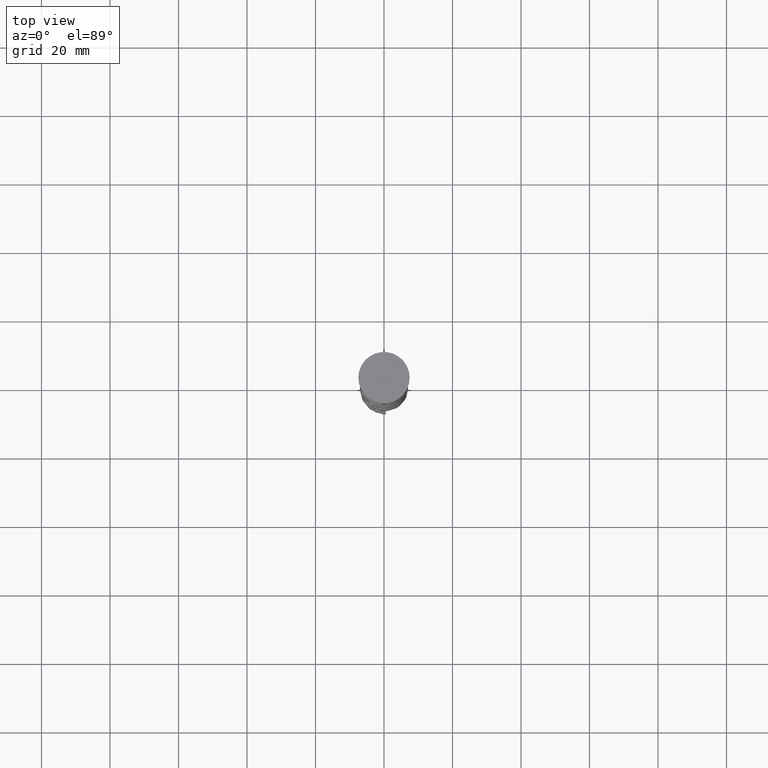
[diagram: clean part render]
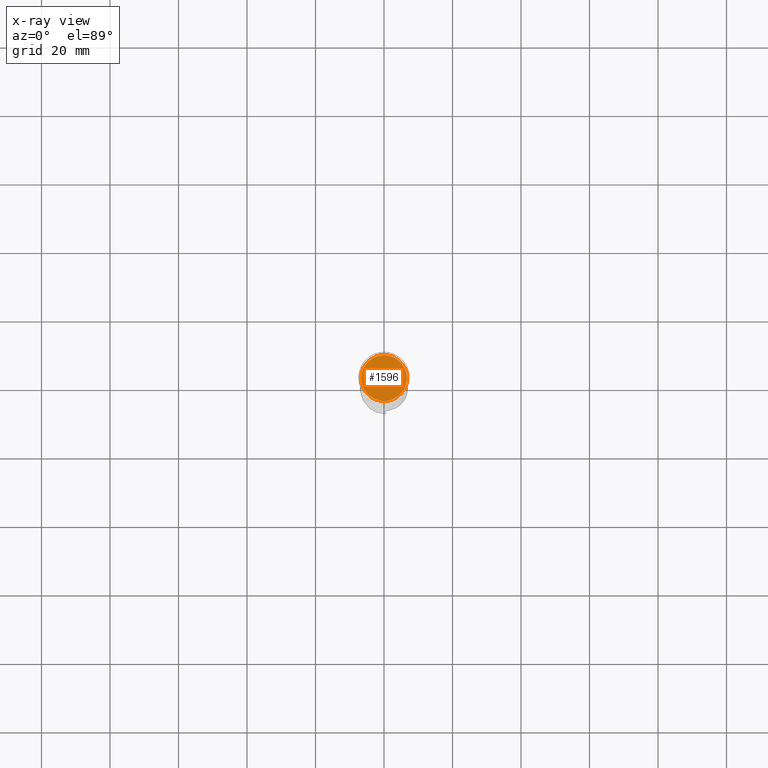
[diagram: x-ray — body ghosted, one internal face saturated and labeled with its STEP entity id]
A machine part, top view, then the same camera in x-ray: the body is ghosted and one INTERNAL B-rep face — a face not visible from any outside direction — is saturated and labeled: STEP entity #1596.
In plain terms, the highlighted planar face has unit normal (0, 0, -1).
Its self-contained STEP definition (entity closure, byte-faithful):
#203 = CIRCLE ( 'NONE', #2966, 6.700000000000001066 ) ;
#215 = DIRECTION ( 'NONE',  ( -0.000000000000000000, -0.000000000000000000, 1.000000000000000000 ) ) ;
#390 = AXIS2_PLACEMENT_3D ( 'NONE', #2592, #215, #1703 ) ;
#458 = EDGE_LOOP ( 'NONE', ( #2135, #1034 ) ) ;
#988 = FACE_OUTER_BOUND ( 'NONE', #458, .T. ) ;
#1034 = ORIENTED_EDGE ( 'NONE', *, *, #2864, .T. ) ;
#1045 = DIRECTION ( 'NONE',  ( -1.000000000000000000, 0.000000000000000000, -0.000000000000000000 ) ) ;
#1147 = CARTESIAN_POINT ( 'NONE',  ( -6.700000000000001066, 0.000000000000000000, -10.50000000000000178 ) ) ;
#1259 = AXIS2_PLACEMENT_3D ( 'NONE', #1629, #1589, #1045 ) ;
#1589 = DIRECTION ( 'NONE',  ( 0.000000000000000000, 0.000000000000000000, -1.000000000000000000 ) ) ;
#1596 = ADVANCED_FACE ( 'NONE', ( #988 ), #1899, .F. ) ;
#1598 = VERTEX_POINT ( 'NONE', #3069 ) ;
#1629 = CARTESIAN_POINT ( 'NONE',  ( 0.000000000000000000, 0.000000000000000000, -10.50000000000000178 ) ) ;
#1703 = DIRECTION ( 'NONE',  ( -1.000000000000000000, 0.000000000000000000, 0.000000000000000000 ) ) ;
#1899 = PLANE ( 'NONE',  #1259 ) ;
#2125 = VERTEX_POINT ( 'NONE', #1147 ) ;
#2126 = CARTESIAN_POINT ( 'NONE',  ( 0.000000000000000000, 0.000000000000000000, -10.50000000000000178 ) ) ;
#2135 = ORIENTED_EDGE ( 'NONE', *, *, #3616, .T. ) ;
#2592 = CARTESIAN_POINT ( 'NONE',  ( 0.000000000000000000, 0.000000000000000000, -10.50000000000000178 ) ) ;
#2763 = DIRECTION ( 'NONE',  ( -0.000000000000000000, -0.000000000000000000, 1.000000000000000000 ) ) ;
#2864 = EDGE_CURVE ( 'NONE', #1598, #2125, #203, .T. ) ;
#2966 = AXIS2_PLACEMENT_3D ( 'NONE', #2126, #2763, #3323 ) ;
#3069 = CARTESIAN_POINT ( 'NONE',  ( 6.700000000000001066, 8.388830574159370862E-16, -10.50000000000000178 ) ) ;
#3323 = DIRECTION ( 'NONE',  ( -1.000000000000000000, 0.000000000000000000, 0.000000000000000000 ) ) ;
#3616 = EDGE_CURVE ( 'NONE', #2125, #1598, #3830, .T. ) ;
#3830 = CIRCLE ( 'NONE', #390, 6.700000000000001066 ) ;